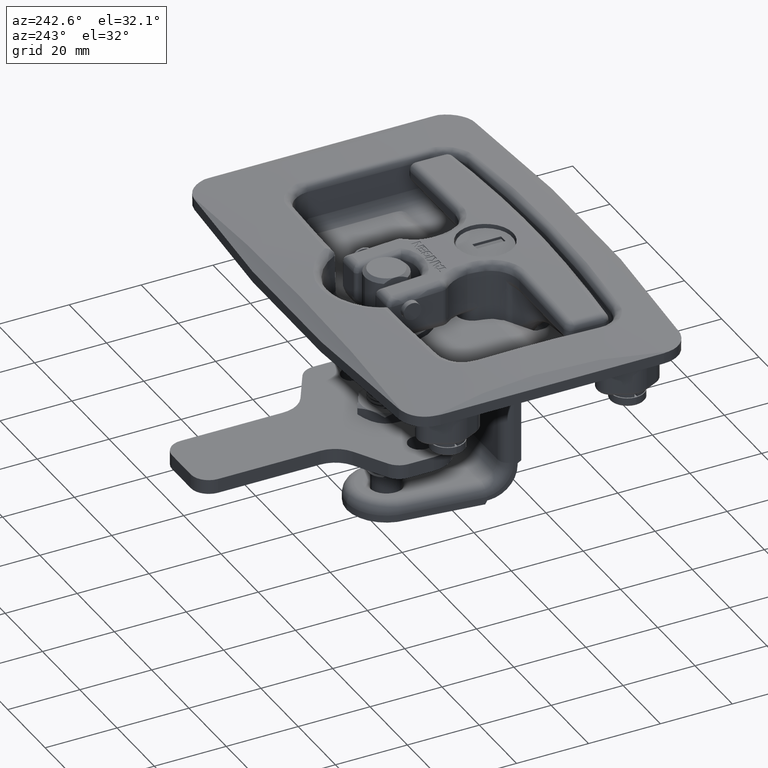
[diagram: clean part render]
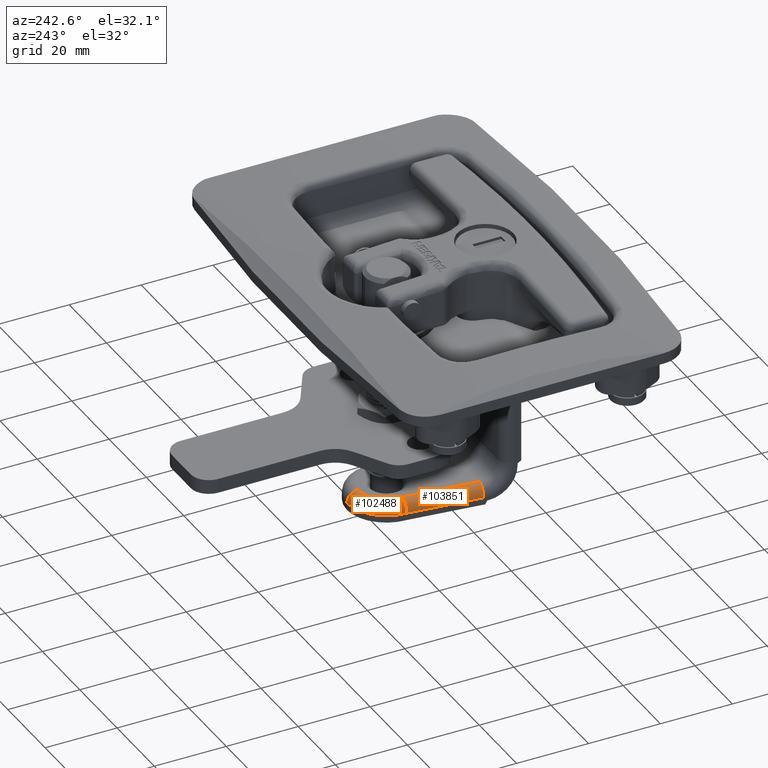
[diagram: same view with one multi-face feature highlighted, each face labeled with its STEP entity id]
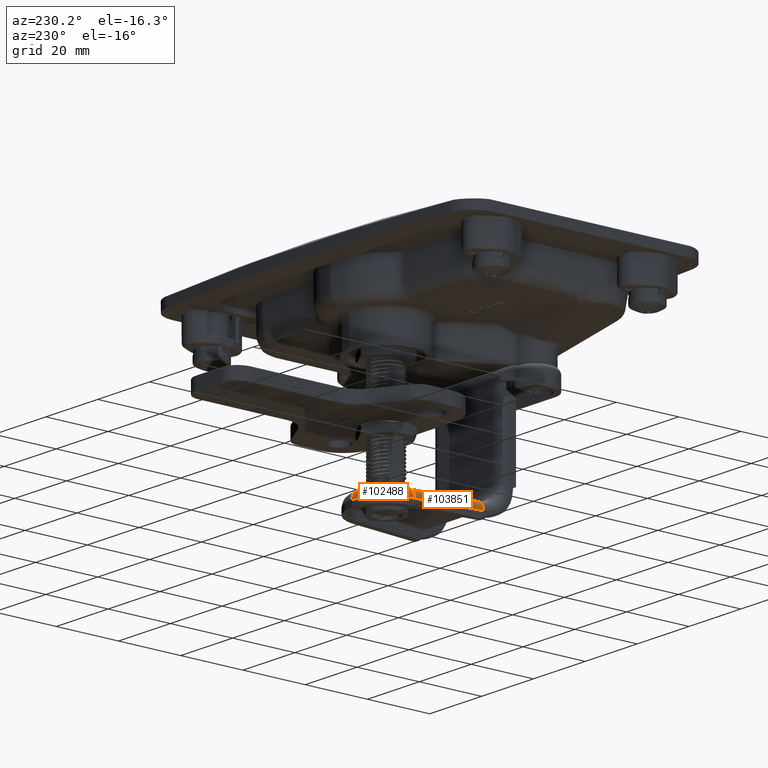
[diagram: same view with one multi-face feature highlighted, each face labeled with its STEP entity id]
A machine part, auxiliary view. The highlighted faces form ONE feature: a constant-radius fillet chain: 2 tangent blend faces with common blend radius 3 mm. The faces share edges in the B-rep.
A second angle (auxiliary view) of the same feature is appended — it is thin or edge-on in the first view.
Their STEP definitions:
[1] entity #103851 (Cylinder):
#27738 = CARTESIAN_POINT ( 'NONE',  ( -7.998321947948490200, -0.1638475418352992600, 2.499999999999996900 ) ) ;
#27769 = CARTESIAN_POINT ( 'NONE',  ( -11.00000000000000000, 1.376764663473651500E-016, -0.4999999999999935100 ) ) ;
#27770 = CARTESIAN_POINT ( 'NONE',  ( -11.00000000000000000, -4.878792132719869500E-015, -0.3017163915522863000 ) ) ;
#27771 = CARTESIAN_POINT ( 'NONE',  ( -10.98053537932595500, -0.001155998114321073800, -0.1067545728385722200 ) ) ;
#27772 = CARTESIAN_POINT ( 'NONE',  ( -10.90427432138045200, -0.005667446079816456900, 0.2767982757335313800 ) ) ;
#27773 = CARTESIAN_POINT ( 'NONE',  ( -10.84654699682086400, -0.009077786889088114800, 0.4673825179086781900 ) ) ;
#27774 = CARTESIAN_POINT ( 'NONE',  ( -10.69588856694034400, -0.01791926880545950300, 0.8307081037167569600 ) ) ;
#27775 = CARTESIAN_POINT ( 'NONE',  ( -10.60370151589084400, -0.02330696233585046900, 1.003013421558994500 ) ) ;
#27776 = CARTESIAN_POINT ( 'NONE',  ( -10.38591836877979800, -0.03591633975934569600, 1.329081959369693900 ) ) ;
#27777 = CARTESIAN_POINT ( 'NONE',  ( -10.25919879822734200, -0.04320090844597825100, 1.483402332410056000 ) ) ;
#27778 = CARTESIAN_POINT ( 'NONE',  ( -9.982449610949325700, -0.05891568916193228700, 1.759972924321145700 ) ) ;
#27779 = CARTESIAN_POINT ( 'NONE',  ( -9.831452618206208500, -0.06740338458874756100, 1.884073780365406800 ) ) ;
#27780 = CARTESIAN_POINT ( 'NONE',  ( -9.503613685264538100, -0.08554801894666724800, 2.103239849469351600 ) ) ;
#27781 = CARTESIAN_POINT ( 'NONE',  ( -9.329189207272556000, -0.09506796656929136800, 2.196304786415329300 ) ) ;
#27782 = CARTESIAN_POINT ( 'NONE',  ( -8.788132439963623800, -0.1240538487276463000, 2.420582608470670700 ) ) ;
#27783 = CARTESIAN_POINT ( 'NONE',  ( -8.392149348414298200, -0.1445078789601586800, 2.499999999999999600 ) ) ;
#27784 = CARTESIAN_POINT ( 'NONE',  ( -7.998321947948490200, -0.1638475418352992600, 2.499999999999996900 ) ) ;
#27790 = B_SPLINE_CURVE_WITH_KNOTS ( 'NONE', 3,
 ( #27784, #27783, #27782, #27781, #27780, #27779, #27778, #27777, #27776, #27775, #27774, #27773, #27772, #27771, #27770, #27769 ),
 .UNSPECIFIED., .F., .F.,
 ( 4, 2, 2, 2, 2, 2, 2, 4 ),
 ( -2.943276384879132600E-005, 0.001153459051660486100, 0.001744904959415124400, 0.002336350867169763100, 0.002927796774924401900, 0.003519242682679040200, 0.004110688590433678900, 0.004702134498188317200 ),
 .UNSPECIFIED. ) ;
#27792 = CARTESIAN_POINT ( 'NONE',  ( -11.00000000000000000, 1.376764663473651500E-016, -0.4999999999999935100 ) ) ;
#28786 = CARTESIAN_POINT ( 'NONE',  ( -10.41929247868237600, -20.49999999999996400, 2.499999999999996000 ) ) ;
#28916 = DIRECTION ( 'NONE',  ( -0.1182128897851126400, -0.9929882741949437300, -6.835555835776449300E-017 ) ) ;
#28917 = VECTOR ( 'NONE', #28916, 1000.000000000000100 ) ;
#28918 = CARTESIAN_POINT ( 'NONE',  ( -9.959268827499000700, -16.63580133005960000, 2.499999999999996000 ) ) ;
#28919 = LINE ( 'NONE', #28918, #28917 ) ;
#29334 = CARTESIAN_POINT ( 'NONE',  ( -13.39825730126722000, -20.14536133064460100, -0.5000000000000038900 ) ) ;
#29389 = DIRECTION ( 'NONE',  ( 0.1182128897851126400, 0.9929882741949437300, 6.835555835776450500E-017 ) ) ;
#29390 = VECTOR ( 'NONE', #29389, 1000.000000000000000 ) ;
#29391 = CARTESIAN_POINT ( 'NONE',  ( -13.50000000000000700, -21.00000000000000700, -0.5000000000000004400 ) ) ;
#29392 = LINE ( 'NONE', #29391, #29390 ) ;
#30420 = CYLINDRICAL_SURFACE ( 'NONE', #30473, 3.000000000000000400 ) ;
#30421 = FACE_OUTER_BOUND ( 'NONE', #103852, .T. ) ;
#30436 = DIRECTION ( 'NONE',  ( 0.9929882741949427300, -0.1182128897851212300, 0.0000000000000000000 ) ) ;
#30437 = DIRECTION ( 'NONE',  ( -0.1182128897851209700, -0.9929882741949427300, 0.0000000000000000000 ) ) ;
#30438 = CARTESIAN_POINT ( 'NONE',  ( -10.41929247868238500, -20.49999999999996400, -0.5000000000000043300 ) ) ;
#30439 = AXIS2_PLACEMENT_3D ( 'NONE', #30438, #30437, #30436 ) ;
#30448 = CIRCLE ( 'NONE', #30439, 3.000000000000000000 ) ;
#30469 = DIRECTION ( 'NONE',  ( 0.9929882741949437300, -0.1182128897851131100, 0.0000000000000000000 ) ) ;
#30470 = DIRECTION ( 'NONE',  ( -0.1182128897851126600, -0.9929882741949438400, -6.835555835776450500E-017 ) ) ;
#30471 = CARTESIAN_POINT ( 'NONE',  ( -9.959268827499007800, -16.63580133005960000, -0.5000000000000036600 ) ) ;
#30473 = AXIS2_PLACEMENT_3D ( 'NONE', #30471, #30470, #30469 ) ;
#102493 = VERTEX_POINT ( 'NONE', #27738 ) ;
#102499 = VERTEX_POINT ( 'NONE', #27792 ) ;
#102501 = EDGE_CURVE ( 'NONE', #102493, #102499, #27790, .T. ) ;
#102924 = VERTEX_POINT ( 'NONE', #28786 ) ;
#102986 = EDGE_CURVE ( 'NONE', #102493, #102924, #28919, .T. ) ;
#103199 = VERTEX_POINT ( 'NONE', #29334 ) ;
#103262 = EDGE_CURVE ( 'NONE', #103199, #102499, #29392, .T. ) ;
#103833 = ORIENTED_EDGE ( 'NONE', *, *, #103834, .F. ) ;
#103834 = EDGE_CURVE ( 'NONE', #102924, #103199, #30448, .T. ) ;
#103835 = ORIENTED_EDGE ( 'NONE', *, *, #102986, .F. ) ;
#103851 = ADVANCED_FACE ( 'NONE', ( #30421 ), #30420, .T. ) ;
#103852 = EDGE_LOOP ( 'NONE', ( #103853, #103854, #103833, #103835 ) ) ;
#103853 = ORIENTED_EDGE ( 'NONE', *, *, #102501, .T. ) ;
#103854 = ORIENTED_EDGE ( 'NONE', *, *, #103262, .F. ) ;
[2] entity #102488 (Torus):
#27732 = CARTESIAN_POINT ( 'NONE',  ( 0.0000000000000000000, 11.00000000000000000, -0.4999999999999927300 ) ) ;
#27733 = DIRECTION ( 'NONE',  ( 0.0000000000000000000, 0.0000000000000000000, 1.000000000000000000 ) ) ;
#27734 = DIRECTION ( 'NONE',  ( -1.000000000000000000, 0.0000000000000000000, 0.0000000000000000000 ) ) ;
#27735 = CARTESIAN_POINT ( 'NONE',  ( 0.0000000000000000000, 8.000000000000000000, -0.4999999999999929500 ) ) ;
#27736 = AXIS2_PLACEMENT_3D ( 'NONE', #27735, #27734, #27733 ) ;
#27737 = CIRCLE ( 'NONE', #27736, 3.000000000000000000 ) ;
#27738 = CARTESIAN_POINT ( 'NONE',  ( -7.998321947948490200, -0.1638475418352992600, 2.499999999999996900 ) ) ;
#27739 = CARTESIAN_POINT ( 'NONE',  ( 0.0000000000000000000, 8.000000000000000000, 2.499999999999997300 ) ) ;
#27740 = DIRECTION ( 'NONE',  ( 0.0000000000000000000, 1.000000000000000000, 5.421010862427522200E-017 ) ) ;
#27741 = DIRECTION ( 'NONE',  ( 0.0000000000000000000, -6.883823317368289700E-017, 1.000000000000000000 ) ) ;
#27742 = CARTESIAN_POINT ( 'NONE',  ( 0.0000000000000000000, -6.883823317368288500E-017, 2.499999999999996900 ) ) ;
#27743 = AXIS2_PLACEMENT_3D ( 'NONE', #27742, #27741, #27740 ) ;
#27744 = CIRCLE ( 'NONE', #27743, 8.000000000000000000 ) ;
#27745 = DIRECTION ( 'NONE',  ( 0.0000000000000000000, 1.000000000000000000, 6.883823317368289700E-017 ) ) ;
#27746 = DIRECTION ( 'NONE',  ( 0.0000000000000000000, 6.883823317368289700E-017, -1.000000000000000000 ) ) ;
#27747 = AXIS2_PLACEMENT_3D ( 'NONE', #27754, #27746, #27745 ) ;
#27748 = TOROIDAL_SURFACE ( 'NONE', #27747, 8.000000000000000000, 3.000000000000000000 ) ;
#27749 = FACE_OUTER_BOUND ( 'NONE', #102489, .T. ) ;
#27754 = CARTESIAN_POINT ( 'NONE',  ( 0.0000000000000000000, 1.376764663473651500E-016, -0.4999999999999935100 ) ) ;
#27769 = CARTESIAN_POINT ( 'NONE',  ( -11.00000000000000000, 1.376764663473651500E-016, -0.4999999999999935100 ) ) ;
#27770 = CARTESIAN_POINT ( 'NONE',  ( -11.00000000000000000, -4.878792132719869500E-015, -0.3017163915522863000 ) ) ;
#27771 = CARTESIAN_POINT ( 'NONE',  ( -10.98053537932595500, -0.001155998114321073800, -0.1067545728385722200 ) ) ;
#27772 = CARTESIAN_POINT ( 'NONE',  ( -10.90427432138045200, -0.005667446079816456900, 0.2767982757335313800 ) ) ;
#27773 = CARTESIAN_POINT ( 'NONE',  ( -10.84654699682086400, -0.009077786889088114800, 0.4673825179086781900 ) ) ;
#27774 = CARTESIAN_POINT ( 'NONE',  ( -10.69588856694034400, -0.01791926880545950300, 0.8307081037167569600 ) ) ;
#27775 = CARTESIAN_POINT ( 'NONE',  ( -10.60370151589084400, -0.02330696233585046900, 1.003013421558994500 ) ) ;
#27776 = CARTESIAN_POINT ( 'NONE',  ( -10.38591836877979800, -0.03591633975934569600, 1.329081959369693900 ) ) ;
#27777 = CARTESIAN_POINT ( 'NONE',  ( -10.25919879822734200, -0.04320090844597825100, 1.483402332410056000 ) ) ;
#27778 = CARTESIAN_POINT ( 'NONE',  ( -9.982449610949325700, -0.05891568916193228700, 1.759972924321145700 ) ) ;
#27779 = CARTESIAN_POINT ( 'NONE',  ( -9.831452618206208500, -0.06740338458874756100, 1.884073780365406800 ) ) ;
#27780 = CARTESIAN_POINT ( 'NONE',  ( -9.503613685264538100, -0.08554801894666724800, 2.103239849469351600 ) ) ;
#27781 = CARTESIAN_POINT ( 'NONE',  ( -9.329189207272556000, -0.09506796656929136800, 2.196304786415329300 ) ) ;
#27782 = CARTESIAN_POINT ( 'NONE',  ( -8.788132439963623800, -0.1240538487276463000, 2.420582608470670700 ) ) ;
#27783 = CARTESIAN_POINT ( 'NONE',  ( -8.392149348414298200, -0.1445078789601586800, 2.499999999999999600 ) ) ;
#27784 = CARTESIAN_POINT ( 'NONE',  ( -7.998321947948490200, -0.1638475418352992600, 2.499999999999996900 ) ) ;
#27790 = B_SPLINE_CURVE_WITH_KNOTS ( 'NONE', 3,
 ( #27784, #27783, #27782, #27781, #27780, #27779, #27778, #27777, #27776, #27775, #27774, #27773, #27772, #27771, #27770, #27769 ),
 .UNSPECIFIED., .F., .F.,
 ( 4, 2, 2, 2, 2, 2, 2, 4 ),
 ( -2.943276384879132600E-005, 0.001153459051660486100, 0.001744904959415124400, 0.002336350867169763100, 0.002927796774924401900, 0.003519242682679040200, 0.004110688590433678900, 0.004702134498188317200 ),
 .UNSPECIFIED. ) ;
#27792 = CARTESIAN_POINT ( 'NONE',  ( -11.00000000000000000, 1.376764663473651500E-016, -0.4999999999999935100 ) ) ;
#27793 = DIRECTION ( 'NONE',  ( 0.0000000000000000000, 1.000000000000000000, 6.899468370362301100E-017 ) ) ;
#27794 = DIRECTION ( 'NONE',  ( 0.0000000000000000000, 6.883823317368289700E-017, -1.000000000000000000 ) ) ;
#27795 = CARTESIAN_POINT ( 'NONE',  ( 0.0000000000000000000, 1.376764663473651500E-016, -0.4999999999999935100 ) ) ;
#27796 = AXIS2_PLACEMENT_3D ( 'NONE', #27795, #27794, #27793 ) ;
#27797 = CIRCLE ( 'NONE', #27796, 11.00000000000000000 ) ;
#102488 = ADVANCED_FACE ( 'NONE', ( #27749 ), #27748, .T. ) ;
#102489 = EDGE_LOOP ( 'NONE', ( #102490, #102494, #102497, #102500 ) ) ;
#102490 = ORIENTED_EDGE ( 'NONE', *, *, #102491, .F. ) ;
#102491 = EDGE_CURVE ( 'NONE', #102492, #102493, #27744, .T. ) ;
#102492 = VERTEX_POINT ( 'NONE', #27739 ) ;
#102493 = VERTEX_POINT ( 'NONE', #27738 ) ;
#102494 = ORIENTED_EDGE ( 'NONE', *, *, #102495, .T. ) ;
#102495 = EDGE_CURVE ( 'NONE', #102492, #102496, #27737, .T. ) ;
#102496 = VERTEX_POINT ( 'NONE', #27732 ) ;
#102497 = ORIENTED_EDGE ( 'NONE', *, *, #102498, .F. ) ;
#102498 = EDGE_CURVE ( 'NONE', #102499, #102496, #27797, .T. ) ;
#102499 = VERTEX_POINT ( 'NONE', #27792 ) ;
#102500 = ORIENTED_EDGE ( 'NONE', *, *, #102501, .F. ) ;
#102501 = EDGE_CURVE ( 'NONE', #102493, #102499, #27790, .T. ) ;